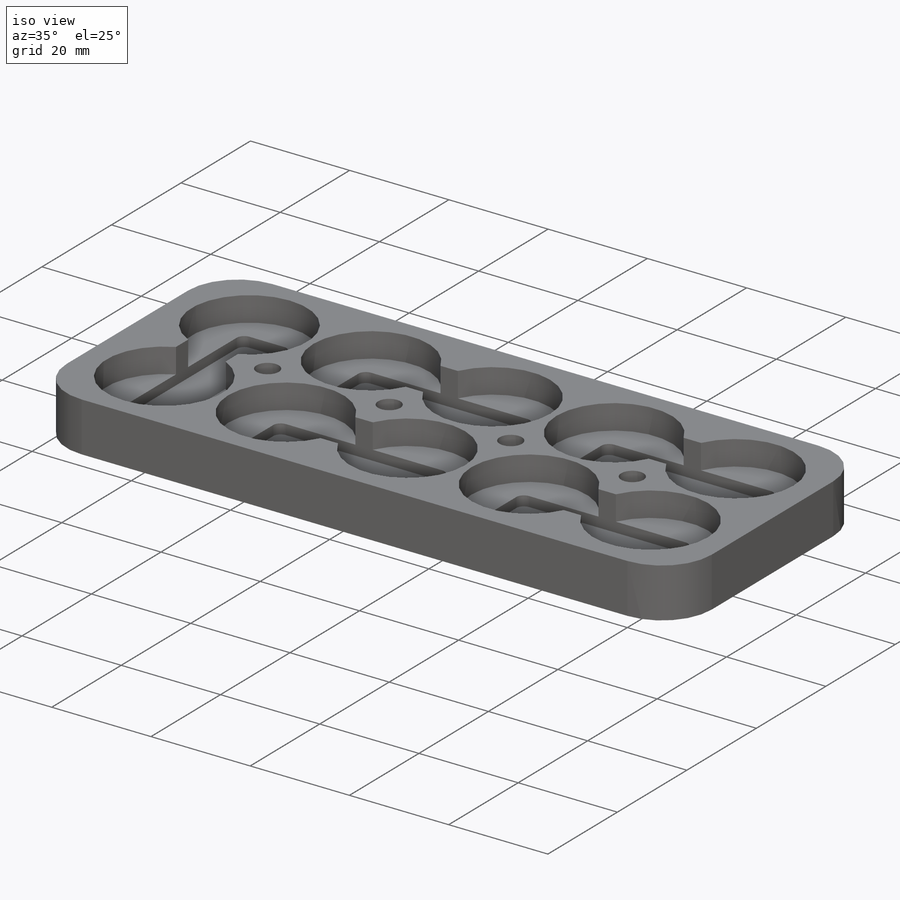
[diagram: iso view]
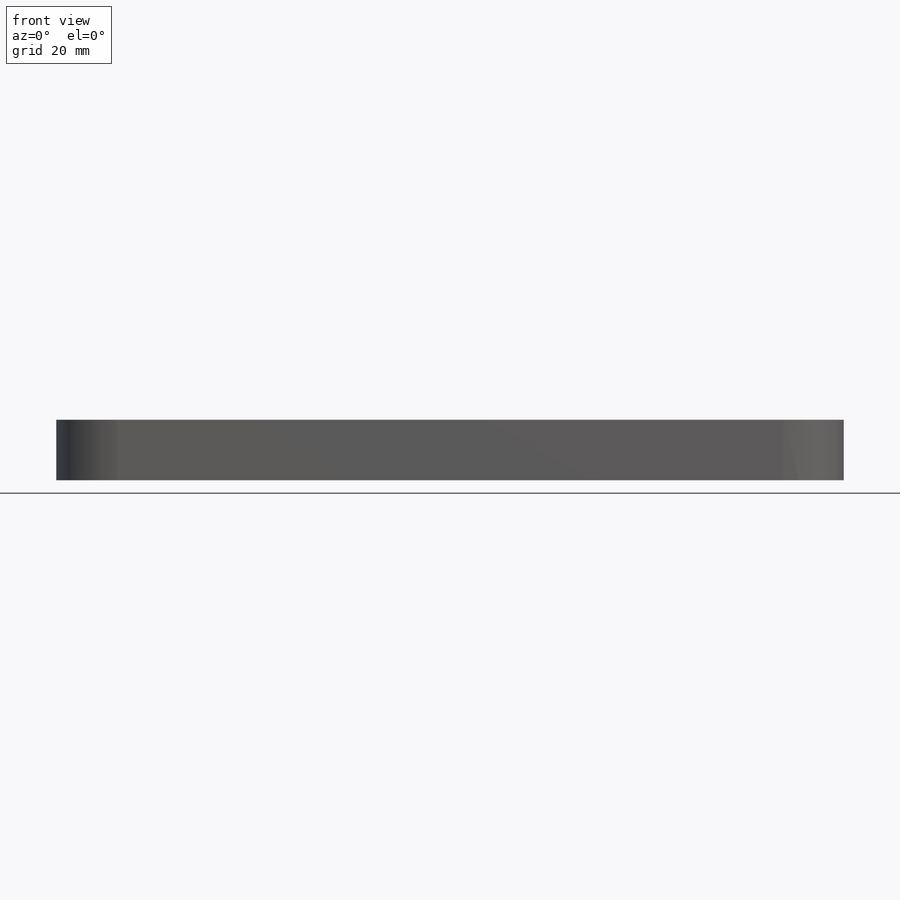
[diagram: front view]
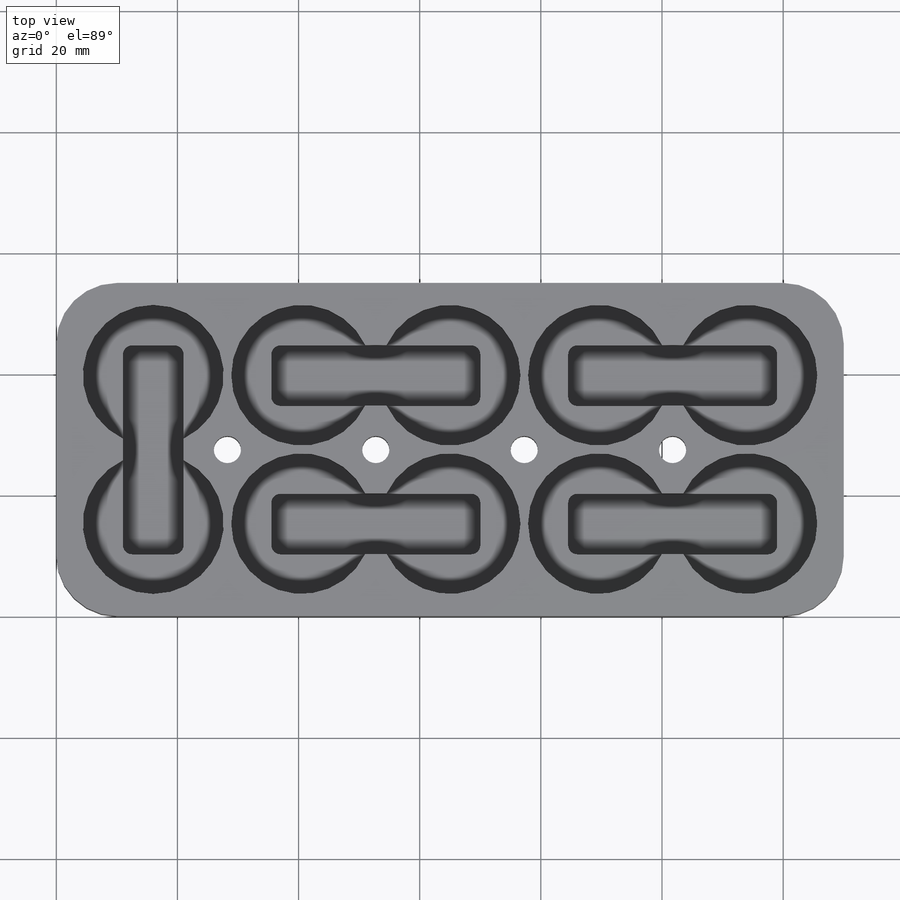
[diagram: top view]
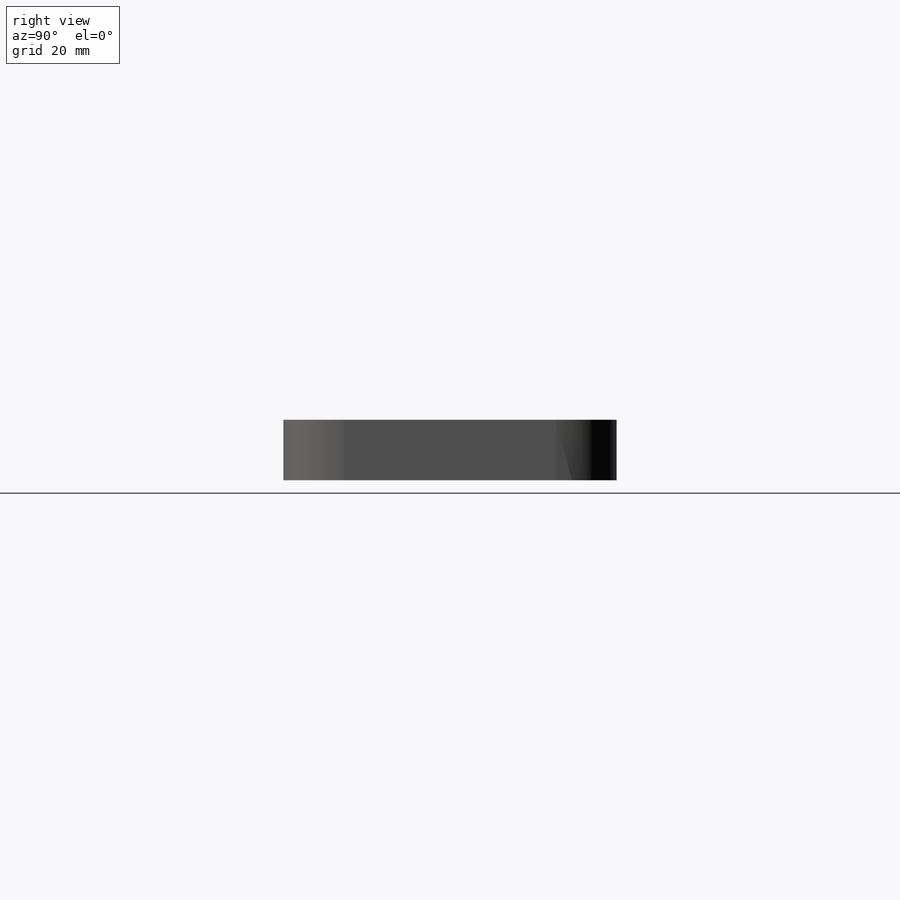
[diagram: right view]
SOLIDWORKS PART (.sldprt)
format: sldprt  version: not decoded by parser v0  size: 705,024 bytes
history: native  units: mm
features: sketch x6, plane x3, fillet x3, cut_extrude x3, material x1, extrude x1, hole x1 (+9 scaffold rows collapsed)
feature tree (27):
  scaffold x9  (default folders/planes/origin — collapsed)
  material  "Material <nicht festgelegt>"
  plane  "Ebene vorne"
  plane  "Ebene oben"
  plane  "Ebene rechts"
  sketch  "Skizze1"  dims[D1=55.0mm D2=130.0mm]
  extrude  "Aufsatz-Linear austragen1"  Depth=10mm
  fillet  "Verrundung1"  Radius=10mm
  hole  "Durchgangsloch für M41"  Diameter=4.5mm Depth=10mm
  sketch  "Skizze7"  dims[D1=24.5mm]
  sketch  "Skizze6"  dims[hole-wizard template sketch: 59 standard entries collapsed; hole parameters kept: c18.Bohrerdurchmesser=4.5mm c18.Bohrungstiefe=10.0mm]
  sketch  "Skizze3"  dims[D1=23.25mm D4=24.5mm D5=24.5mm D2=5.0 D3=2.0]
  cut_extrude  "Schnitt-Linear austragen1"  Depth=5mm
  sketch  "Skizze4"  dims[D1=10.0mm D2=~9.528814mm]
  cut_extrude  "Schnitt-Linear austragen2"  Depth=2mm
  fillet  "Verrundung2"  Radius=2mm
  sketch  "Skizze8"  dims[D1=10.0mm D2=5.0 D3=2.0]
  cut_extrude  "Schnitt-Linear austragen3"  Depth=2mm
  fillet  "Verrundung3"  Radius=1.5mm
decode coverage: 14 of 14 modeling features carry decoded parameters
note: ~ marks probable driven/reference dimensions
note: suppression state not decoded; provenance and decode notes live in map.json
